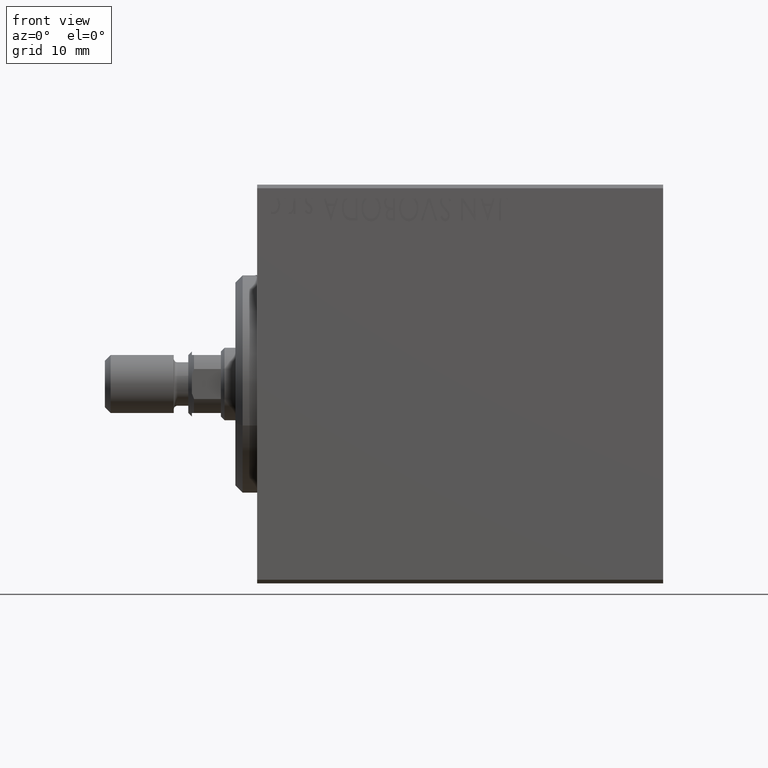
[diagram: clean part render]
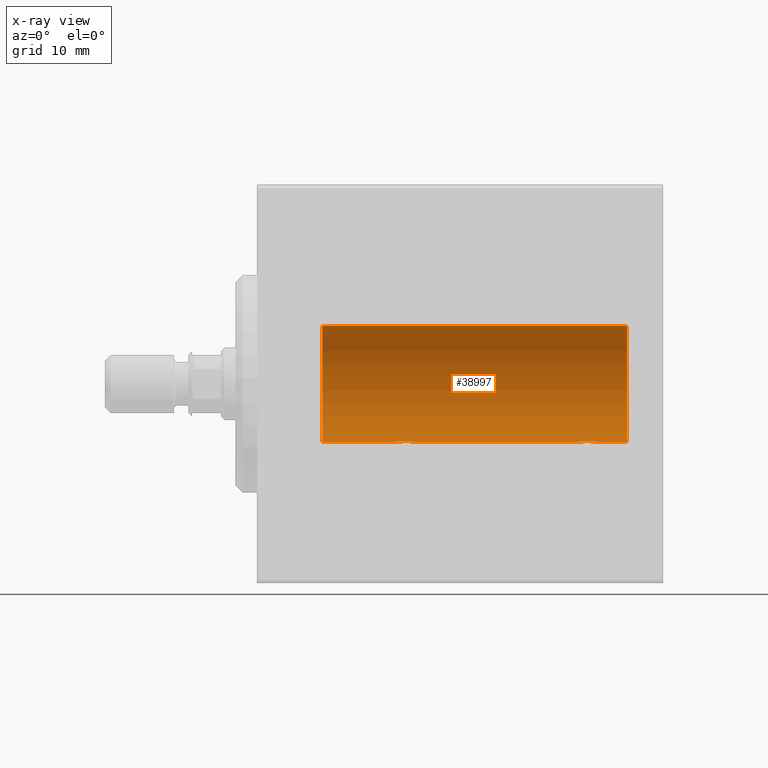
[diagram: x-ray — body ghosted, one internal face saturated and labeled with its STEP entity id]
A machine part, front view, then the same camera in x-ray: the body is ghosted and one INTERNAL B-rep face — a face not visible from any outside direction — is saturated and labeled: STEP entity #38997.
In plain terms, the highlighted cylindrical surface (partial cylindrical patch) has radius 8 mm, axis along (-1, -0, -0).
Its self-contained STEP definition (entity closure, byte-faithful):
#55 = CARTESIAN_POINT ( 'NONE',  ( 21.59204967621043991, 0.6298709050361920303, -7.976604806854521001 ) ) ;
#60 = CARTESIAN_POINT ( 'NONE',  ( 51.00000000000000000, 0.000000000000000000, 7.999999999999998224 ) ) ;
#356 = CARTESIAN_POINT ( 'NONE',  ( 46.50031982237067751, 0.7674545364220052290, -7.963965305651049320 ) ) ;
#408 = CARTESIAN_POINT ( 'NONE',  ( 19.25000000000000711, -6.253246997522681077E-15, -7.999999999999998224 ) ) ;
#487 = CARTESIAN_POINT ( 'NONE',  ( 21.70976650520091411, 0.3250523954932730830, -7.993796610540221614 ) ) ;
#491 = LINE ( 'NONE', #60, #18725 ) ;
#787 = CARTESIAN_POINT ( 'NONE',  ( 46.59204967621045057, 0.6298709050361936956, -7.976604806854522778 ) ) ;
#924 = CARTESIAN_POINT ( 'NONE',  ( 21.74181525892405986, 0.1645871186493928773, -7.998709545350109806 ) ) ;
#1449 = EDGE_CURVE ( 'NONE', #30416, #1883, #13262, .T. ) ;
#1883 = VERTEX_POINT ( 'NONE', #32095 ) ;
#1999 = ORIENTED_EDGE ( 'NONE', *, *, #2702, .F. ) ;
#2425 = DIRECTION ( 'NONE',  ( -1.000000000000000000, -0.000000000000000000, -0.000000000000000000 ) ) ;
#2659 = ORIENTED_EDGE ( 'NONE', *, *, #41785, .F. ) ;
#2702 = EDGE_CURVE ( 'NONE', #44354, #15531, #6711, .T. ) ;
#2870 = CARTESIAN_POINT ( 'NONE',  ( 51.00000000000000000, 9.797174393178823685E-16, -7.999999999999998224 ) ) ;
#3735 = CARTESIAN_POINT ( 'NONE',  ( 45.82459038316879685, 1.209888574283866980, -7.907997942808293601 ) ) ;
#3870 = CARTESIAN_POINT ( 'NONE',  ( 19.73146701955095494, 0.9991832710565806686, -7.938201675418735448 ) ) ;
#4174 = CARTESIAN_POINT ( 'NONE',  ( 46.68608944587722220, 0.4029817482954573538, -7.990203133273721114 ) ) ;
#4314 = CARTESIAN_POINT ( 'NONE',  ( 20.33619145091235936, 1.249938428426572656, -7.901750054830717573 ) ) ;
#4621 = CARTESIAN_POINT ( 'NONE',  ( 44.25000000000000711, -6.574401834785964054E-15, -7.999999999999998224 ) ) ;
#5834 = EDGE_CURVE ( 'NONE', #29810, #7411, #6267, .T. ) ;
#6267 = CIRCLE ( 'NONE', #27083, 7.999999999999998224 ) ;
#6711 = LINE ( 'NONE', #2870, #7626 ) ;
#6821 = CARTESIAN_POINT ( 'NONE',  ( 19.87074834296262438, 1.092266057037466487, -7.925334523600932712 ) ) ;
#7131 = CARTESIAN_POINT ( 'NONE',  ( 44.50115498801908842, 0.7689725568822843860, -7.963798983873343396 ) ) ;
#7267 = CARTESIAN_POINT ( 'NONE',  ( 20.82459038316880395, 1.209888574283866758, -7.907997942808293601 ) ) ;
#7310 = ORIENTED_EDGE ( 'NONE', *, *, #38832, .T. ) ;
#7411 = VERTEX_POINT ( 'NONE', #7868 ) ;
#7626 = VECTOR ( 'NONE', #2425, 1000.000000000000000 ) ;
#7703 = CARTESIAN_POINT ( 'NONE',  ( 19.50115498801909197, 0.7689725568822818325, -7.963798983873345172 ) ) ;
#7786 = CARTESIAN_POINT ( 'NONE',  ( 46.70976650520091766, 0.3250523954932729165, -7.993796610540221614 ) ) ;
#7862 = EDGE_CURVE ( 'NONE', #13150, #15531, #24632, .T. ) ;
#7868 = CARTESIAN_POINT ( 'NONE',  ( 9.000000000000001776, 9.797174393178823685E-16, -7.999999999999998224 ) ) ;
#9091 = VERTEX_POINT ( 'NONE', #44495 ) ;
#9804 = ORIENTED_EDGE ( 'NONE', *, *, #35986, .T. ) ;
#10025 = B_SPLINE_CURVE_WITH_KNOTS ( 'NONE', 3,
 ( #4621, #11386, #41544, #24215, #7131, #31204, #38379, #38829, #14101, #10502, #14322, #3735, #21273, #17476, #17913, #356, #787, #4174, #7786, #10727, #35236, #24437 ),
 .UNSPECIFIED., .F., .F.,
 ( 4, 2, 2, 2, 2, 2, 2, 2, 2, 2, 4 ),
 ( 7.505074081152076538E-19, 0.0004892585179630999388, 0.0009785170359261990101, 0.001467775553889298082, 0.001957034071852397587, 0.002201663330833957422, 0.002446292589815517258, 0.002935551107778656445, 0.003424809625741795632, 0.003669438884723368911, 0.003914068143704942625 ),
 .UNSPECIFIED. ) ;
#10502 = CARTESIAN_POINT ( 'NONE',  ( 45.58119849493557751, 1.250030652953401322, -7.901735465557271354 ) ) ;
#10727 = CARTESIAN_POINT ( 'NONE',  ( 46.74181525892407052, 0.1645871186493928495, -7.998709545350109806 ) ) ;
#10816 = AXIS2_PLACEMENT_3D ( 'NONE', #41142, #13479, #27430 ) ;
#11116 = DIRECTION ( 'NONE',  ( -1.000000000000000000, 0.000000000000000000, 0.000000000000000000 ) ) ;
#11188 = VECTOR ( 'NONE', #17324, 1000.000000000000000 ) ;
#11386 = CARTESIAN_POINT ( 'NONE',  ( 44.25000000000001421, 0.1654536524217962712, -8.000000000000000000 ) ) ;
#11526 = CIRCLE ( 'NONE', #10816, 7.999999999999998224 ) ;
#13150 = VERTEX_POINT ( 'NONE', #408 ) ;
#13262 = LINE ( 'NONE', #30594, #11188 ) ;
#13479 = DIRECTION ( 'NONE',  ( -1.000000000000000000, 0.000000000000000000, 0.000000000000000000 ) ) ;
#13804 = DIRECTION ( 'NONE',  ( -1.000000000000000000, -0.000000000000000000, -0.000000000000000000 ) ) ;
#13974 = FACE_OUTER_BOUND ( 'NONE', #30691, .T. ) ;
#14101 = CARTESIAN_POINT ( 'NONE',  ( 45.33619145091235225, 1.249938428426572656, -7.901750054830718462 ) ) ;
#14322 = CARTESIAN_POINT ( 'NONE',  ( 45.66417091690310315, 1.241868426634441969, -7.903038949453011774 ) ) ;
#14673 = CARTESIAN_POINT ( 'NONE',  ( 21.75000000000000000, 0.08164616652084619175, -7.999999999999998224 ) ) ;
#15378 = EDGE_CURVE ( 'NONE', #13150, #7411, #34545, .T. ) ;
#15531 = VERTEX_POINT ( 'NONE', #20809 ) ;
#17324 = DIRECTION ( 'NONE',  ( -1.000000000000000000, -0.000000000000000000, -0.000000000000000000 ) ) ;
#17476 = CARTESIAN_POINT ( 'NONE',  ( 46.12982270639373183, 1.092113850918999818, -7.925358570881163800 ) ) ;
#17616 = CARTESIAN_POINT ( 'NONE',  ( 21.68608944587722576, 0.4029817482954558550, -7.990203133273719338 ) ) ;
#17787 = CYLINDRICAL_SURFACE ( 'NONE', #25207, 7.999999999999998224 ) ;
#17913 = CARTESIAN_POINT ( 'NONE',  ( 46.26739091610629373, 1.000368629246204399, -7.938072339095200824 ) ) ;
#18049 = CARTESIAN_POINT ( 'NONE',  ( 9.000000000000001776, 0.000000000000000000, 7.999999999999998224 ) ) ;
#18052 = CARTESIAN_POINT ( 'NONE',  ( 21.12982270639374605, 1.092113850918997153, -7.925358570881165576 ) ) ;
#18725 = VECTOR ( 'NONE', #13804, 1000.000000000000000 ) ;
#19223 = ORIENTED_EDGE ( 'NONE', *, *, #15378, .F. ) ;
#20809 = CARTESIAN_POINT ( 'NONE',  ( 21.75000000000000355, 9.797173987965608855E-16, -7.999999999999998224 ) ) ;
#21273 = CARTESIAN_POINT ( 'NONE',  ( 45.90257413385905494, 1.186236229830389455, -7.911627449023362679 ) ) ;
#21422 = CARTESIAN_POINT ( 'NONE',  ( 19.40826977845302537, 0.6304521543648575754, -7.976560245937306171 ) ) ;
#23507 = DIRECTION ( 'NONE',  ( -1.000000000000000000, -0.000000000000000000, -0.000000000000000000 ) ) ;
#24079 = CARTESIAN_POINT ( 'NONE',  ( 51.00000000000000000, 0.000000000000000000, 0.000000000000000000 ) ) ;
#24176 = CARTESIAN_POINT ( 'NONE',  ( 9.000000000000001776, 0.000000000000000000, 0.000000000000000000 ) ) ;
#24215 = CARTESIAN_POINT ( 'NONE',  ( 44.40826977845300405, 0.6304521543648577975, -7.976560245937304394 ) ) ;
#24437 = CARTESIAN_POINT ( 'NONE',  ( 46.74999999999999289, 9.797173987957720246E-16, -7.999999999999998224 ) ) ;
#24527 = DIRECTION ( 'NONE',  ( 0.000000000000000000, 0.000000000000000000, 1.000000000000000000 ) ) ;
#24632 = B_SPLINE_CURVE_WITH_KNOTS ( 'NONE', 3,
 ( #33829, #37427, #34043, #21422, #7703, #3870, #6821, #35154, #4314, #31123, #34934, #7267, #41236, #18052, #31340, #31776, #55, #17616, #487, #924, #14673, #27521 ),
 .UNSPECIFIED., .F., .F.,
 ( 4, 2, 2, 2, 2, 2, 2, 2, 2, 2, 4 ),
 ( 4.384776375612755932E-19, 0.0004892585179631271522, 0.0009785170359262538708, 0.001467775553889380698, 0.001957034071852507308, 0.002201663330834065842, 0.002446292589815623510, 0.002935551107778730170, 0.003424809625741835964, 0.003669438884723391463, 0.003914068143704946962 ),
 .UNSPECIFIED. ) ;
#24836 = DIRECTION ( 'NONE',  ( 0.000000000000000000, 0.000000000000000000, 1.000000000000000000 ) ) ;
#25207 = AXIS2_PLACEMENT_3D ( 'NONE', #24079, #30852, #24527 ) ;
#27083 = AXIS2_PLACEMENT_3D ( 'NONE', #24176, #11116, #24836 ) ;
#27430 = DIRECTION ( 'NONE',  ( 0.000000000000000000, 0.000000000000000000, 1.000000000000000000 ) ) ;
#27521 = CARTESIAN_POINT ( 'NONE',  ( 21.75000000000000355, 9.797173987965608855E-16, -7.999999999999998224 ) ) ;
#28095 = ORIENTED_EDGE ( 'NONE', *, *, #5834, .T. ) ;
#29810 = VERTEX_POINT ( 'NONE', #18049 ) ;
#30416 = VERTEX_POINT ( 'NONE', #39008 ) ;
#30467 = ORIENTED_EDGE ( 'NONE', *, *, #1449, .F. ) ;
#30594 = CARTESIAN_POINT ( 'NONE',  ( 51.00000000000000000, 9.797174393178823685E-16, -7.999999999999998224 ) ) ;
#30691 = EDGE_LOOP ( 'NONE', ( #30467, #2659, #7310, #28095, #19223, #41144, #1999, #9804 ) ) ;
#30852 = DIRECTION ( 'NONE',  ( -1.000000000000000000, -0.000000000000000000, -0.000000000000000000 ) ) ;
#31123 = CARTESIAN_POINT ( 'NONE',  ( 20.58119849493555620, 1.250030652953401988, -7.901735465557267801 ) ) ;
#31204 = CARTESIAN_POINT ( 'NONE',  ( 44.73146701955094784, 0.9991832710565826670, -7.938201675418733672 ) ) ;
#31340 = CARTESIAN_POINT ( 'NONE',  ( 21.26739091610630084, 1.000368629246204399, -7.938072339095202601 ) ) ;
#31575 = CARTESIAN_POINT ( 'NONE',  ( 44.25000000000000711, -6.574401834785964054E-15, -7.999999999999998224 ) ) ;
#31776 = CARTESIAN_POINT ( 'NONE',  ( 21.50031982237068107, 0.7674545364220053401, -7.963965305651049320 ) ) ;
#32095 = CARTESIAN_POINT ( 'NONE',  ( 46.74999999999999289, 9.797173987957720246E-16, -7.999999999999998224 ) ) ;
#33829 = CARTESIAN_POINT ( 'NONE',  ( 19.25000000000000711, -6.253246997522681077E-15, -7.999999999999998224 ) ) ;
#34043 = CARTESIAN_POINT ( 'NONE',  ( 19.28266791658456825, 0.3277916934117463543, -7.994719249713585718 ) ) ;
#34545 = LINE ( 'NONE', #40835, #36178 ) ;
#34934 = CARTESIAN_POINT ( 'NONE',  ( 20.66417091690312091, 1.241868426634441747, -7.903038949453011774 ) ) ;
#35154 = CARTESIAN_POINT ( 'NONE',  ( 20.17150130922778573, 1.217000984963200860, -7.907141142849008375 ) ) ;
#35236 = CARTESIAN_POINT ( 'NONE',  ( 46.75000000000000000, 0.08164616652084634441, -8.000000000000000000 ) ) ;
#35986 = EDGE_CURVE ( 'NONE', #44354, #1883, #10025, .T. ) ;
#36178 = VECTOR ( 'NONE', #23507, 1000.000000000000000 ) ;
#37427 = CARTESIAN_POINT ( 'NONE',  ( 19.25000000000000711, 0.1654536524217966875, -8.000000000000000000 ) ) ;
#38379 = CARTESIAN_POINT ( 'NONE',  ( 44.87074834296262082, 1.092266057037466265, -7.925334523600929160 ) ) ;
#38829 = CARTESIAN_POINT ( 'NONE',  ( 45.17150130922779283, 1.217000984963200416, -7.907141142849010151 ) ) ;
#38832 = EDGE_CURVE ( 'NONE', #9091, #29810, #491, .T. ) ;
#38997 = ADVANCED_FACE ( 'NONE', ( #13974 ), #17787, .F. ) ;
#39008 = CARTESIAN_POINT ( 'NONE',  ( 51.00000000000000000, 9.797174393178823685E-16, -7.999999999999998224 ) ) ;
#40835 = CARTESIAN_POINT ( 'NONE',  ( 51.00000000000000000, 9.797174393178823685E-16, -7.999999999999998224 ) ) ;
#41142 = CARTESIAN_POINT ( 'NONE',  ( 51.00000000000000000, 0.000000000000000000, 0.000000000000000000 ) ) ;
#41144 = ORIENTED_EDGE ( 'NONE', *, *, #7862, .T. ) ;
#41236 = CARTESIAN_POINT ( 'NONE',  ( 20.90257413385907270, 1.186236229830388345, -7.911627449023368008 ) ) ;
#41544 = CARTESIAN_POINT ( 'NONE',  ( 44.28266791658455759, 0.3277916934117462988, -7.994719249713585718 ) ) ;
#41785 = EDGE_CURVE ( 'NONE', #9091, #30416, #11526, .T. ) ;
#44354 = VERTEX_POINT ( 'NONE', #31575 ) ;
#44495 = CARTESIAN_POINT ( 'NONE',  ( 51.00000000000000000, 0.000000000000000000, 7.999999999999998224 ) ) ;